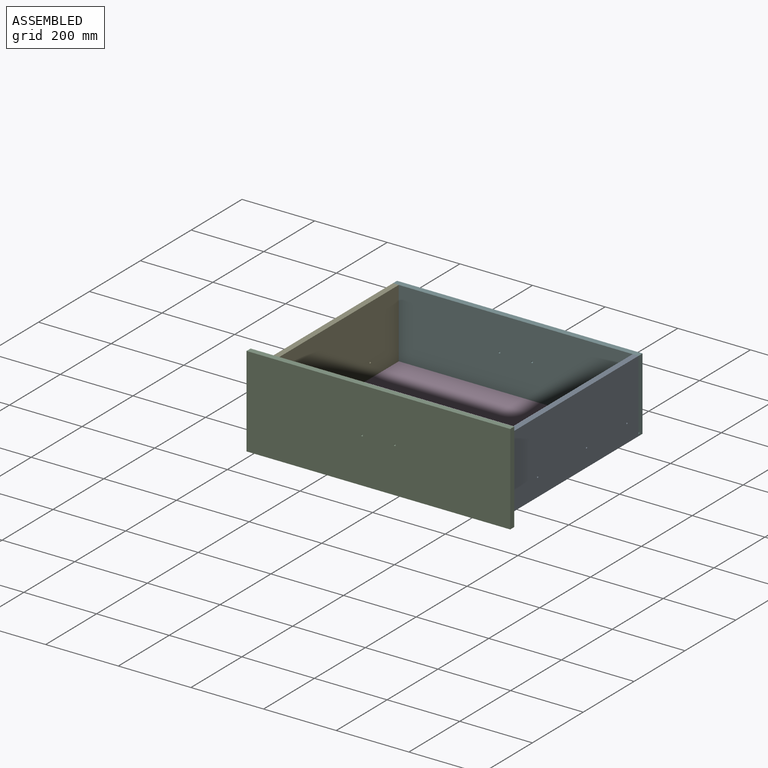
[diagram: assembled view]
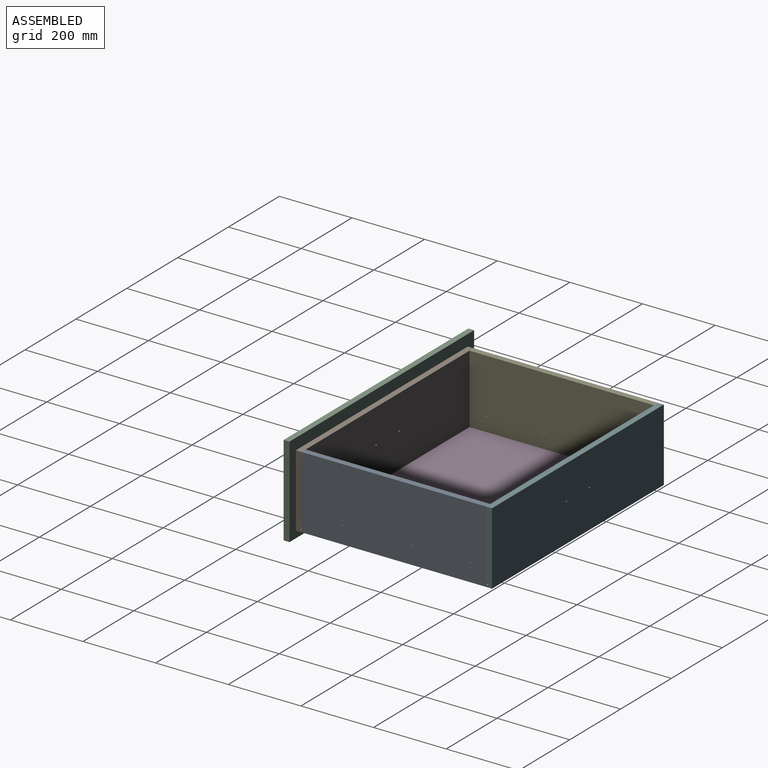
[diagram: assembled view, second angle]
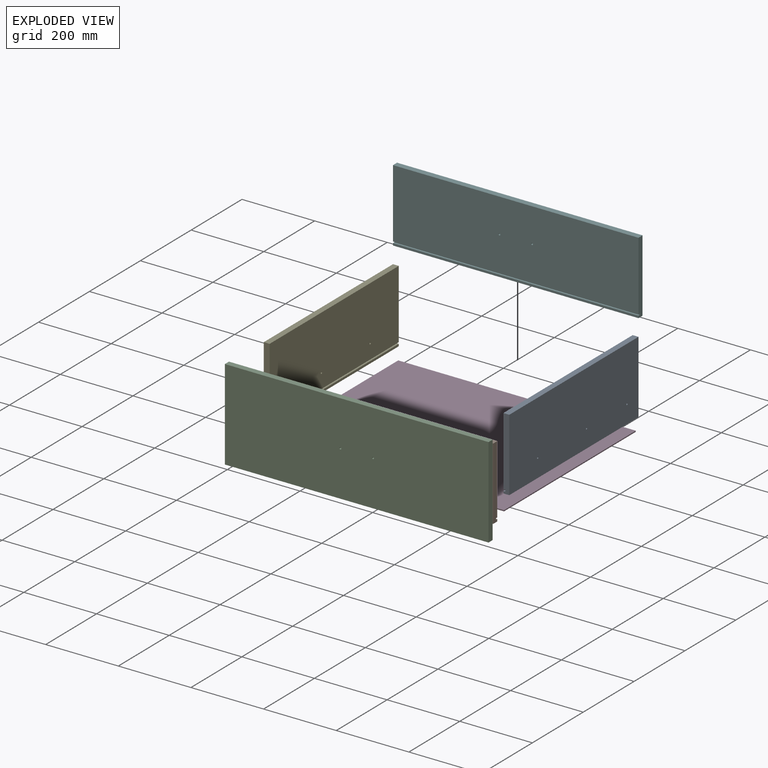
[diagram: exploded view]
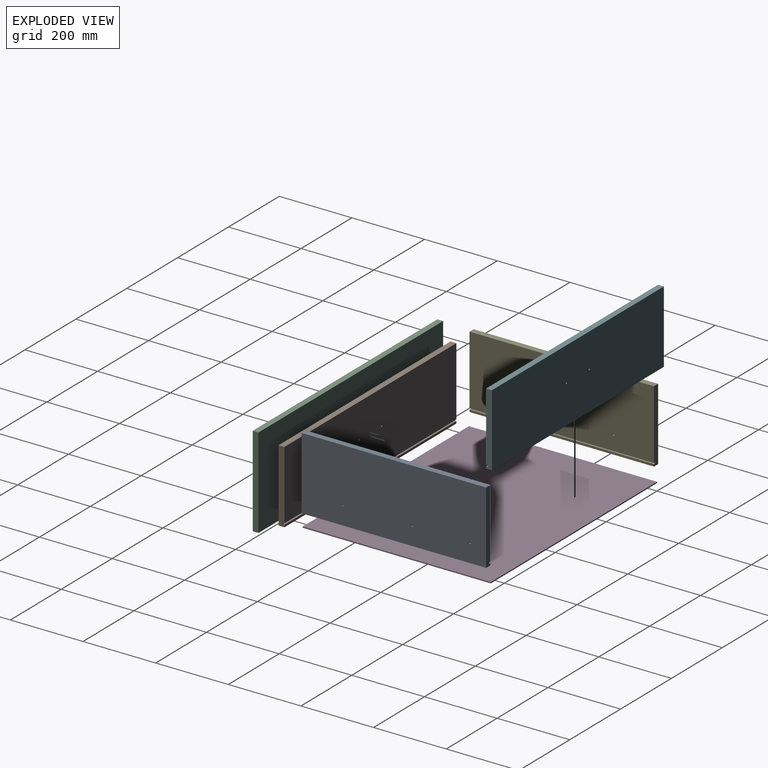
[diagram: exploded view, second angle]
ASSEMBLY  parts=6 mates=16
PART A: 13 faces, bbox 16x508x200 mm
  f0: plane 508x6mm, normal (-1,0,0), area 3048mm2, adj f1,f2,f3,f8
  f1: plane 200x16mm, normal (0,-1,0), area 3180mm2, adj f0,f2,f4,f5,f6,f7,f8,f9
  f2: plane 508x16mm, normal (0,0,-1), area 8128mm2, adj f0,f1,f3,f5
  f3: plane 200x16mm, normal (0,1,0), area 3180mm2, adj f0,f2,f4,f5,f6,f7,f8,f9
  f4: plane 508x16mm, normal (0,0,1), area 8128mm2, adj f1,f3,f5,f6
  f5: plane 508x200mm, normal (1,0,0), area 101541.1mm2, adj f1,f2,f3,f4,f10,f11,f12
  f6: plane 508x190mm, normal (-1,0,0), area 96461.1mm2, adj f1,f3,f4,f7,f10,f11,f12
  f7: plane 508x5mm, normal (0,0,-1), area 2540mm2, adj f1,f3,f6,f9
  f8: plane 508x5mm, normal (0,0,1), area 2540mm2, adj f0,f1,f3,f9
  f9: plane 508x4mm, normal (-1,0,0), area 2032mm2, adj f1,f3,f7,f8
  f10: cylinder r=2.5mm len=16mm, axis (1,0,0), area 251.3mm2, adj f5,f6
  f11: cylinder r=2.5mm len=16mm, axis (1,0,0), area 251.3mm2, adj f5,f6
  f12: cylinder r=2.5mm len=16mm, axis (1,0,0), area 251.3mm2, adj f5,f6
PART B: 12 faces, bbox 676x16x200 mm
  f0: plane 676x190mm, normal (0,-1,0), area 128400.7mm2, adj f1,f3,f4,f7,f10,f11
  f1: plane 200x16mm, normal (-1,0,0), area 3180mm2, adj f0,f2,f4,f5,f6,f7,f8,f9
  f2: plane 676x16mm, normal (0,0,-1), area 10816mm2, adj f1,f3,f5,f6
  f3: plane 200x16mm, normal (1,0,0), area 3180mm2, adj f0,f2,f4,f5,f6,f7,f8,f9
  f4: plane 676x16mm, normal (0,0,1), area 10816mm2, adj f0,f1,f3,f6
  f5: plane 676x6mm, normal (0,-1,0), area 4056mm2, adj f1,f2,f3,f8
  f6: plane 676x200mm, normal (0,1,0), area 135160.7mm2, adj f1,f2,f3,f4,f10,f11
  f7: plane 676x5mm, normal (0,0,-1), area 3380mm2, adj f0,f1,f3,f9
  f8: plane 676x5mm, normal (0,0,1), area 3380mm2, adj f1,f3,f5,f9
  f9: plane 676x4mm, normal (0,-1,0), area 2704mm2, adj f1,f3,f7,f8
  f10: cylinder r=2.5mm len=16mm, axis (0,1,0), area 251.3mm2, adj f0,f6
  f11: cylinder r=2.5mm len=16mm, axis (0,1,0), area 251.3mm2, adj f0,f6
PART C: 8 faces, bbox 726x16x250 mm
  f0: plane 726x16mm, normal (0,0,1), area 11616mm2, adj f1,f3,f4,f5
  f1: plane 250x16mm, normal (-1,0,0), area 4000mm2, adj f0,f2,f4,f5
  f2: plane 726x16mm, normal (0,0,-1), area 11616mm2, adj f1,f3,f4,f5
  f3: plane 250x16mm, normal (1,0,0), area 4000mm2, adj f0,f2,f4,f5
  f4: plane 726x250mm, normal (0,-1,0), area 181460.7mm2, adj f0,f1,f2,f3,f6,f7
  f5: plane 726x250mm, normal (0,1,0), area 181460.7mm2, adj f0,f1,f2,f3,f6,f7
  f6: cylinder r=2.5mm len=16mm, axis (0,-1,0), area 251.3mm2, adj f4,f5
  f7: cylinder r=2.5mm len=16mm, axis (0,-1,0), area 251.3mm2, adj f4,f5
PART D: 6 faces, bbox 654x518x3 mm
  f0: plane 518x3mm, normal (1,0,0), area 1554mm2, adj f1,f3,f4,f5
  f1: plane 654x3mm, normal (0,1,0), area 1962mm2, adj f0,f2,f4,f5
  f2: plane 518x3mm, normal (-1,0,0), area 1554mm2, adj f1,f3,f4,f5
  f3: plane 654x3mm, normal (0,-1,0), area 1962mm2, adj f0,f2,f4,f5
  f4: plane 654x518mm, normal (0,0,1), area 338772mm2, adj f0,f1,f2,f3
  f5: plane 654x518mm, normal (0,0,-1), area 338772mm2, adj f0,f1,f2,f3
PART E: same geometry as A
PART F: same geometry as B
PLACE A t=(82.63,-338.09,-446.23)mm
PLACE B rot(axis=(0,0,1),180deg) t=(-155.42,-705.01,-101.21)mm
PLACE C t=(-367.09,-705.01,334.36)mm
PLACE D t=(87.63,-176.01,-339.92)mm fixed
PLACE E rot(axis=(0,0,1),180deg) t=(-561.37,-531.94,-446.23)mm
PLACE F t=(-323.31,-165.01,-101.21)mm
MATE planar A.f8 <-> D.f5  axis (0,0,1) through (85.13,-435.01,-339.92)mm
MATE planar D.f5 <-> F.f8  axis (0,0,-1) through (-239.37,-435.01,-339.92)mm
MATE planar E.f8 <-> D.f5  axis (0,0,1) through (-563.87,-435.01,-339.92)mm
MATE planar D.f3 <-> B.f9  axis (0,-1,0) through (-239.37,-694.01,-338.42)mm
MATE planar B.f1 <-> A.f5  axis (1,0,0) through (98.63,-697.05,-245.34)mm
MATE cylindrical B.f10 <-> C.f6  axis (0,-1,0) through (-194.37,-705.01,-239.92)mm
MATE planar C.f5 <-> B.f6  axis (0,1,0) through (-239.37,-705.01,-239.92)mm
MATE cylindrical C.f7 <-> B.f11  axis (0,-1,0) through (-284.37,-713.01,-239.92)mm
MATE planar E.f5 <-> B.f3  axis (-1,0,0) through (-577.37,-435.01,-145.92)mm
MATE planar B.f8 <-> D.f5  axis (0,0,1) through (-239.37,-691.51,-339.92)mm
MATE planar F.f9 <-> D.f1  axis (0,-1,0) through (-239.37,-176.01,-337.92)mm
MATE planar D.f5 <-> E.f8  axis (0,0,-1) through (-239.37,-435.01,-339.92)mm
MATE planar A.f9 <-> D.f0  axis (-1,0,0) through (87.63,-435.01,-337.92)mm
MATE planar E.f1 <-> F.f0  axis (0,1,0) through (-569.4,-181.01,-245.34)mm
MATE planar A.f5 <-> F.f3  axis (1,0,0) through (98.63,-435.04,-245.89)mm
MATE planar F.f0 <-> A.f3  axis (0,-1,0) through (-239.37,-181.01,-240.92)mm
